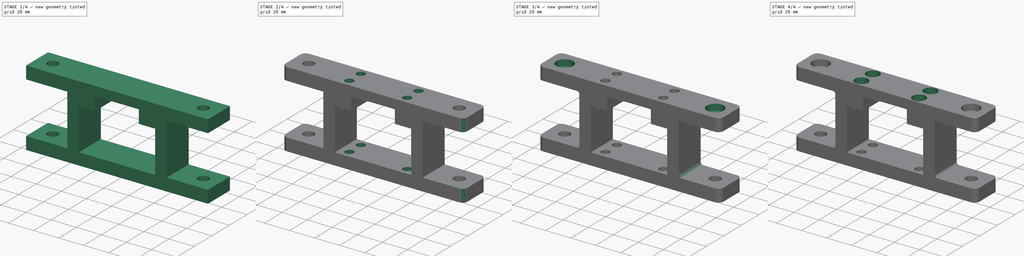
[diagram: build sequence overview — one tinted view per stage of 4, left to right]
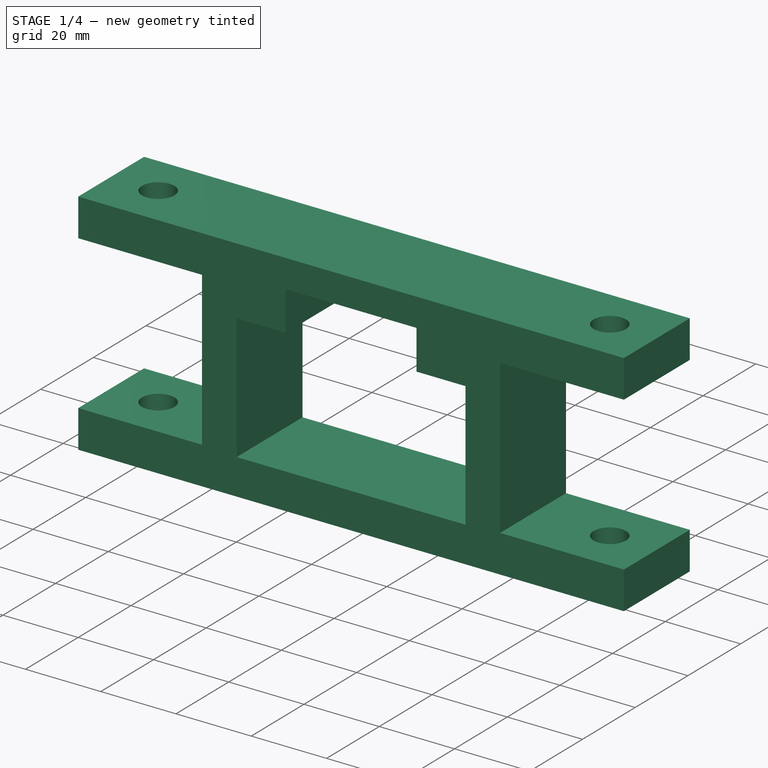
[diagram: stage 1 of 4 — iso view after this stage's code; geometry added in this stage tinted green]
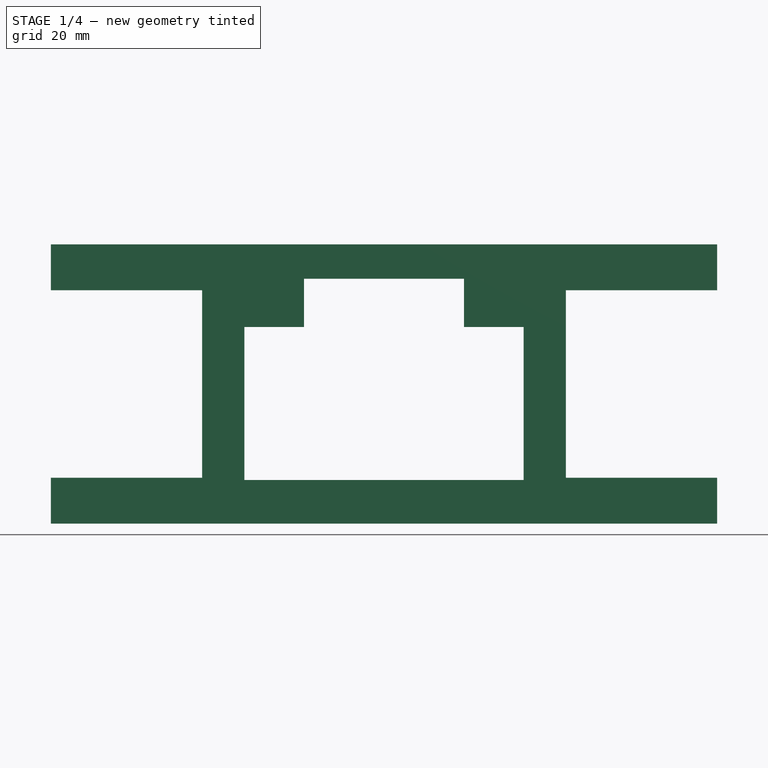
[diagram: stage 1 of 4 — front view after this stage's code; geometry added in this stage tinted green]
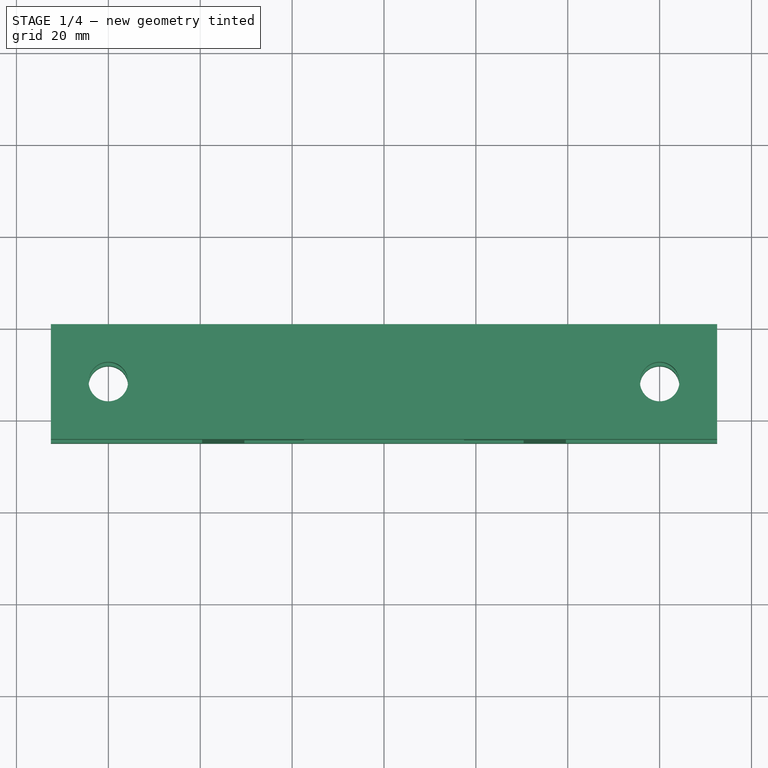
[diagram: stage 1 of 4 — top view after this stage's code; geometry added in this stage tinted green]
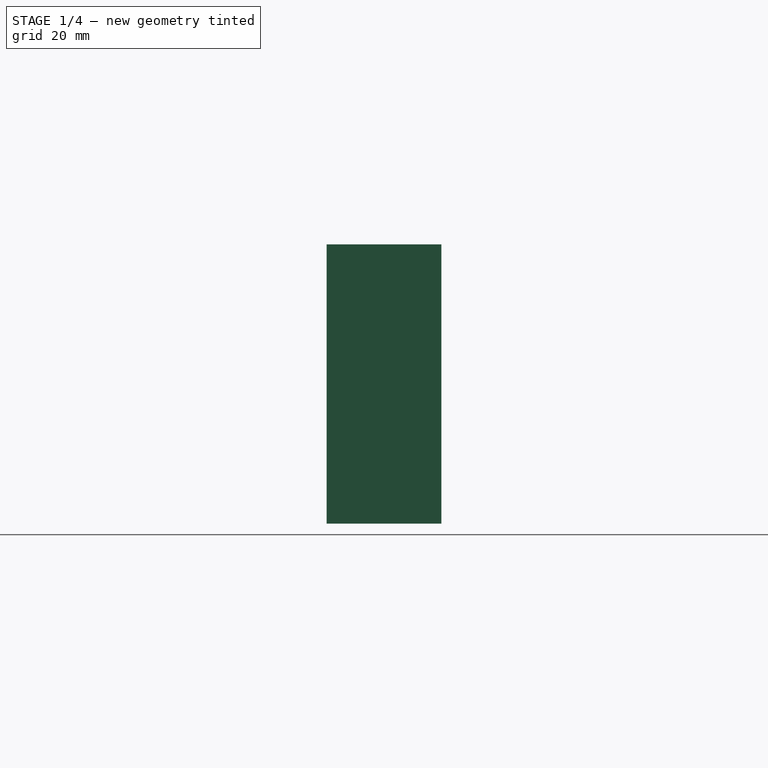
[diagram: stage 1 of 4 — right view after this stage's code; geometry added in this stage tinted green]
FCSTD DOCUMENT  (FreeCAD 1.0R39109 (Git))
Label: surge_BK12_support
License: All rights reserved
LicenseURL: https://en.wikipedia.org/wiki/All_rights_reserved
objects: Sketcher::SketchObject×7, PartDesign::Pocket×6, PartDesign::Fillet×2, PartDesign::Pad×1, PartDesign::Body×1
note: 42 computed .brp shape members not serialized (recipe doc carries the construction recipe); baked Part::Feature solids carry a one-line shape summary decoded from their .brp

FEATURE [Sketcher::SketchObject] Sketch
  ArcFitTolerance = 1e-06
  AttachmentSupport = -> [XZ_Plane]
  FullyConstrained = true
  MakeInternals = false
  MapMode = 5
  Placement = pos=(0,0,0) rot=(1,0,0;1.5708rad)
  sketch-geometry (40):
    g0: LineSegment [constr] StartX=-80 StartY=20 StartZ=0 EndX=-80 EndY=-20 EndZ=0
    g1: LineSegment [constr] StartX=-80 StartY=-20 StartZ=0 EndX=-40 EndY=-20 EndZ=0
    g2: LineSegment [constr] StartX=-40 StartY=-20 StartZ=0 EndX=-40 EndY=20 EndZ=0
    g3: LineSegment [constr] StartX=-40 StartY=20 StartZ=0 EndX=-80 EndY=20 EndZ=0
    g4: LineSegment [constr] StartX=40 StartY=20 StartZ=0 EndX=40 EndY=-20 EndZ=0
    g5: LineSegment [constr] StartX=40 StartY=-20 StartZ=0 EndX=80 EndY=-20 EndZ=0
    g6: LineSegment [constr] StartX=80 StartY=-20 StartZ=0 EndX=80 EndY=20 EndZ=0
    g7: LineSegment [constr] StartX=80 StartY=20 StartZ=0 EndX=40 EndY=20 EndZ=0
    g8: LineSegment [constr] StartX=-40 StartY=-20 StartZ=0 EndX=-7.1e-15 EndY=0 EndZ=0
    g9: LineSegment [constr] StartX=-3.6e-15 StartY=0 StartZ=0 EndX=40 EndY=-20 EndZ=0
    g10: LineSegment [constr] StartX=-30 StartY=-20.5 StartZ=0 EndX=30 EndY=-20.5 EndZ=0
    g11: LineSegment [constr] StartX=30 StartY=-20.5 StartZ=0 EndX=30 EndY=12 EndZ=0
    g12: LineSegment [constr] StartX=-30 StartY=-20.5 StartZ=0 EndX=-30 EndY=12 EndZ=0
    g13: LineSegment [constr] StartX=-30 StartY=12 StartZ=0 EndX=-17 EndY=12 EndZ=0
    g14: LineSegment [constr] StartX=-17 StartY=12 StartZ=0 EndX=-17 EndY=22.5 EndZ=0
    g15: LineSegment [constr] StartX=-17 StartY=22.5 StartZ=0 EndX=17 EndY=22.5 EndZ=0
    g16: LineSegment [constr] StartX=17 StartY=22.5 StartZ=0 EndX=17 EndY=12 EndZ=0
    g17: LineSegment [constr] StartX=17 StartY=12 StartZ=0 EndX=30 EndY=12 EndZ=0
    g18: LineSegment [constr] StartX=-30 StartY=-20.5 StartZ=0 EndX=-3.6e-15 EndY=0 EndZ=0
    g19: LineSegment [constr] StartX=-3.6e-15 StartY=0 StartZ=0 EndX=30 EndY=-20.5 EndZ=0
    g20: LineSegment StartX=-72.5 StartY=-30.4 StartZ=0 EndX=72.5 EndY=-30.4 EndZ=0
    g21: LineSegment StartX=72.5 StartY=30.4 StartZ=0 EndX=-72.5 EndY=30.4 EndZ=0
    g22: LineSegment StartX=-30.4 StartY=-20.9 StartZ=0 EndX=-30.4 EndY=12.4 EndZ=0
    g23: LineSegment StartX=-30.4 StartY=12.4 StartZ=0 EndX=-17.4 EndY=12.4 EndZ=0
    g24: LineSegment StartX=-17.4 StartY=12.4 StartZ=0 EndX=-17.4 EndY=22.9 EndZ=0
    g25: LineSegment StartX=-17.4 StartY=22.9 StartZ=0 EndX=17.4 EndY=22.9 EndZ=0
    g26: LineSegment StartX=17.4 StartY=22.9 StartZ=0 EndX=17.4 EndY=12.4 EndZ=0
    g27: LineSegment StartX=17.4 StartY=12.4 StartZ=0 EndX=30.4 EndY=12.4 EndZ=0
    g28: LineSegment StartX=30.4 StartY=12.4 StartZ=0 EndX=30.4 EndY=-20.9 EndZ=0
    g29: LineSegment StartX=30.4 StartY=-20.9 StartZ=0 EndX=-30.4 EndY=-20.9 EndZ=0
    g30: LineSegment StartX=72.5 StartY=-30.4 StartZ=0 EndX=72.5 EndY=-20.4 EndZ=0
    g31: LineSegment StartX=72.5 StartY=-20.4 StartZ=0 EndX=39.6 EndY=-20.4 EndZ=0
    g32: LineSegment StartX=39.6 StartY=-20.4 StartZ=0 EndX=39.6 EndY=20.4 EndZ=0
    g33: LineSegment StartX=39.6 StartY=20.4 StartZ=0 EndX=72.5 EndY=20.4 EndZ=0
    g34: LineSegment StartX=72.5 StartY=20.4 StartZ=0 EndX=72.5 EndY=30.4 EndZ=0
    g35: LineSegment StartX=-72.5 StartY=-30.4 StartZ=0 EndX=-72.5 EndY=-20.4 EndZ=0
    g36: LineSegment StartX=-72.5 StartY=-20.4 StartZ=0 EndX=-39.6 EndY=-20.4 EndZ=0
    g37: LineSegment StartX=-39.6 StartY=-20.4 StartZ=0 EndX=-39.6 EndY=20.4 EndZ=0
    g38: LineSegment StartX=-39.6 StartY=20.4 StartZ=0 EndX=-72.5 EndY=20.4 EndZ=0
    g39: LineSegment StartX=-72.5 StartY=20.4 StartZ=0 EndX=-72.5 EndY=30.4 EndZ=0
  constraints (116):
    c: Coincident(g0,g1)
    c: Coincident(g1,g2)
    c: Coincident(g2,g3)
    c: Coincident(g3,g0)
    c: Vertical(g0)
    c: Vertical(g2)
    c: Horizontal(g1)
    c: Horizontal(g3)
    c: Coincident(g4,g5)
    c: Coincident(g5,g6)
    c: Coincident(g6,g7)
    c: Coincident(g7,g4)
    c: Vertical(g4)
    c: Vertical(g6)
    c: Horizontal(g5)
    c: Horizontal(g7)
    c: Equal(g4,g7)
    c: Equal(g7,g2)
    c: Equal(g2,g3)
    c: DistanceX(g3,g3) = 40
    c: DistanceX(g2,g4) = 80
    c: DistanceY(g4,g2) = 0
    c: Coincident(g8,g1)
    c: Coincident(g8,g-1)
    c: Coincident(g9,g8)
    c: Coincident(g9,g4)
    c: Equal(g8,g9)
    c: Horizontal(g10)
    c: Coincident(g11,g10)
    c: Vertical(g11)
    c: Coincident(g12,g10)
    c: Vertical(g12)
    c: Coincident(g13,g12)
    c: Horizontal(g13)
    c: Coincident(g14,g13)
    c: Vertical(g14)
    c: Coincident(g15,g14)
    c: Horizontal(g15)
    c: Vertical(g16)
    c: Coincident(g17,g16)
    c: Coincident(g17,g11)
    c: DistanceX(g10,g10) = 60
    c: DistanceY(g12,g12) = 32.5
    c: Coincident(g16,g15)
    c: Horizontal(g17)
    c: Equal(g12,g11)
    c: Equal(g13,g17)
    c: DistanceX(g13,g13) = 13
    c: DistanceY(g14,g14) = 10.5
    c: DistanceY(g12,g2) = 8
    c: Coincident(g18,g10)
    c: Coincident(g18,g8)
    c: Coincident(g19,g8)
    c: Coincident(g19,g10)
    c: Equal(g19,g18)
    c: DistanceY(g8,g2) = 20
    c: Horizontal(g20)
    c: Horizontal(g21)
    c: Vertical(g22)
    c: Coincident(g22,g23)
    c: Horizontal(g23)
    c: Coincident(g23,g24)
    c: Vertical(g24)
    c: Coincident(g24,g25)
    c: Horizontal(g25)
    c: Coincident(g25,g26)
    c: Vertical(g26)
    c: Coincident(g26,g27)
    c: Horizontal(g27)
    c: Coincident(g27,g28)
    c: Vertical(g28)
    c: Coincident(g28,g29)
    c: Coincident(g29,g22)
    c: Horizontal(g29)
    c: Equal(g22,g28)
    c: Equal(g23,g27)
    c: DistanceY(g22,g10) = 0.4
    c: DistanceX(g22,g10) = 0.4
    c: DistanceY(g12,g22) = 0.4
    c: DistanceX(g23,g13) = 0.4
    c: DistanceY(g14,g24) = 0.4
    c: DistanceX(g10,g28) = 0.4
    c: Coincident(g20,g30)
    c: Vertical(g30)
    c: Coincident(g30,g31)
    c: Horizontal(g31)
    c: Coincident(g31,g32)
    c: Vertical(g32)
    c: Coincident(g32,g33)
    c: Horizontal(g33)
    c: Coincident(g33,g34)
    c: Coincident(g34,g21)
    c: Vertical(g34)
    c: Coincident(g20,g35)
    c: Vertical(g35)
    c: Coincident(g35,g36)
    c: Horizontal(g36)
    c: Coincident(g36,g37)
    c: Vertical(g37)
    c: Coincident(g37,g38)
    c: Horizontal(g38)
    c: Coincident(g38,g39)
    c: Coincident(g39,g21)
    c: Vertical(g39)
    c: DistanceY(g35,g0) = 0.4
    c: DistanceY(g35,g35) = 10
    c: DistanceX(g1,g36) = 0.4
    c: DistanceY(g2,g37) = 0.4
    c: Equal(g31,g33)
    c: Equal(g33,g38)
    c: Equal(g38,g36)
    c: Equal(g39,g35)
    c: Equal(g35,g30)
    c: Equal(g30,g34)
    c: DistanceX(g0,g35) = 7.5
    c: DistanceX(g31,g4) = 0.4
FEATURE [PartDesign::Pad] Pad
  Direction = (0,-1,2e-16)
  Length = 25
  Length2 = 10
  Placement = pos=(0,0,0) rot=(1,0,0;1.5708rad)
  Profile = -> Sketch
  ReferenceAxis = -> Sketch [N_Axis]
  Refine = true
  Suppressed = false
  Type = 0
FEATURE [Sketcher::SketchObject] Sketch001
  ArcFitTolerance = 1e-06
  AttachmentSupport = -> [Pad]
  FullyConstrained = true
  MakeInternals = false
  MapMode = 5
  Placement = pos=(0,1.34e-14,30.4) rot=(0,0,1;3.14159rad)
  sketch-geometry (14):
    g0: LineSegment [constr] StartX=-80 StartY=0 StartZ=0 EndX=-40 EndY=0 EndZ=0
    g1: LineSegment [constr] StartX=-40 StartY=0 StartZ=0 EndX=-40 EndY=25 EndZ=0
    g2: LineSegment [constr] StartX=-40 StartY=25 StartZ=0 EndX=-80 EndY=25 EndZ=0
    g3: LineSegment [constr] StartX=-80 StartY=25 StartZ=0 EndX=-80 EndY=0 EndZ=0
    g4: LineSegment [constr] StartX=80 StartY=0 StartZ=0 EndX=80 EndY=25 EndZ=0
    g5: LineSegment [constr] StartX=80 StartY=25 StartZ=0 EndX=40 EndY=25 EndZ=0
    g6: LineSegment [constr] StartX=40 StartY=25 StartZ=0 EndX=40 EndY=0 EndZ=0
    g7: LineSegment [constr] StartX=40 StartY=0 StartZ=0 EndX=80 EndY=0 EndZ=0
    g8: LineSegment [constr] StartX=-80 StartY=0 StartZ=0 EndX=-40 EndY=25 EndZ=0
    g9: LineSegment [constr] StartX=-40 StartY=0 StartZ=0 EndX=-80 EndY=25 EndZ=0
    g10: LineSegment [constr] StartX=40 StartY=0 StartZ=0 EndX=80 EndY=25 EndZ=0
    g11: LineSegment [constr] StartX=40 StartY=25 StartZ=0 EndX=80 EndY=0 EndZ=0
    g12: Circle CenterX=-60 CenterY=12.5 CenterZ=0 NormalX=0 NormalY=0 NormalZ=1 AngleXU=0 Radius=4.3
    g13: Circle CenterX=60 CenterY=12.5 CenterZ=0 NormalX=0 NormalY=0 NormalZ=1 AngleXU=0 Radius=4.3
  constraints (36):
    c: Coincident(g0,g1)
    c: Coincident(g1,g2)
    c: Coincident(g2,g3)
    c: Coincident(g3,g0)
    c: Horizontal(g0)
    c: Horizontal(g2)
    c: Vertical(g1)
    c: Vertical(g3)
    c: Distance(g1,g3) = 40
    c: Distance(g0,g2) = 25
    c: PointOnObject(g0,g-1)
    c: Coincident(g4,g5)
    c: Coincident(g5,g6)
    c: Coincident(g6,g7)
    c: Coincident(g7,g4)
    c: Vertical(g4)
    c: Vertical(g6)
    c: Horizontal(g5)
    c: Horizontal(g7)
    c: PointOnObject(g4,g-1)
    c: Equal(g0,g7)
    c: Equal(g3,g4)
    c: DistanceX(g0,g-1) = 80
    c: DistanceX(g-1,g4) = 80
    c: Coincident(g8,g0)
    c: Coincident(g8,g1)
    c: Coincident(g9,g0)
    c: Coincident(g9,g2)
    c: Coincident(g10,g6)
    c: Coincident(g10,g4)
    c: Coincident(g11,g5)
    c: Coincident(g11,g4)
    c: Symmetric(g9,g9,g12)
    c: Diameter(g12) = 8.6
    c: Symmetric(g10,g10,g13)
    c: Equal(g13,g12)
FEATURE [PartDesign::Pocket] Pocket
  BaseFeature = -> Pad
  Direction = (0,0,-1)
  Length = 5
  Length2 = 5
  Placement = pos=(0,0,0) rot=(1,0,0;1.5708rad)
  Profile = -> Sketch001
  ReferenceAxis = -> Sketch001 [N_Axis]
  Refine = true
  Suppressed = false
  Type = 1
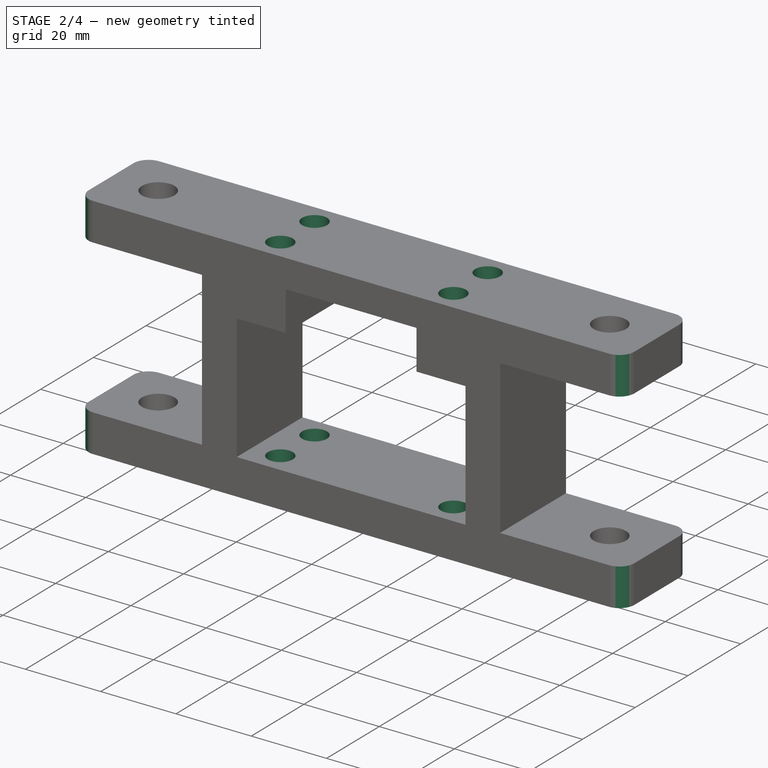
[diagram: stage 2 of 4 — iso view after this stage's code; geometry added in this stage tinted green]
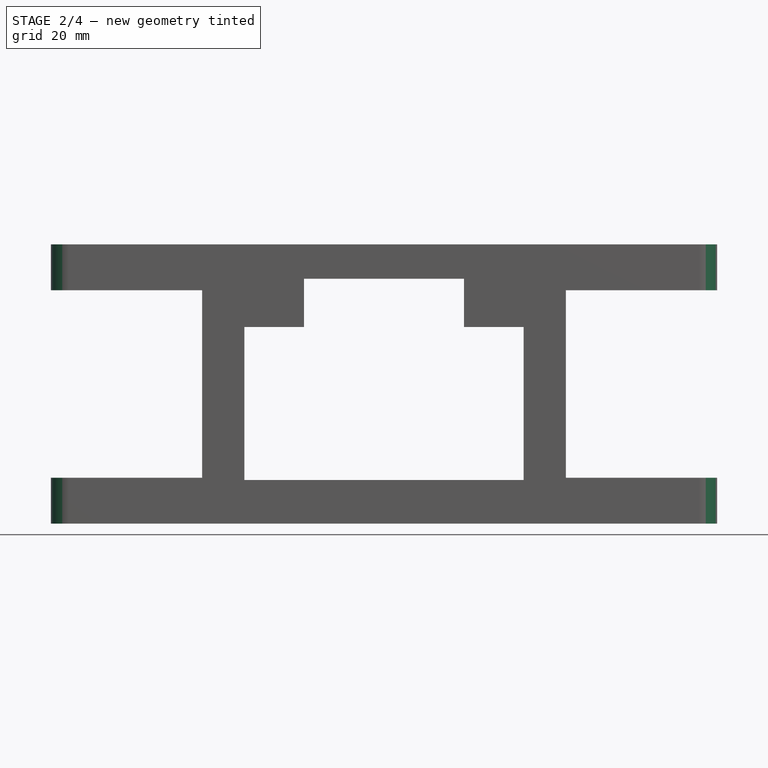
[diagram: stage 2 of 4 — front view after this stage's code; geometry added in this stage tinted green]
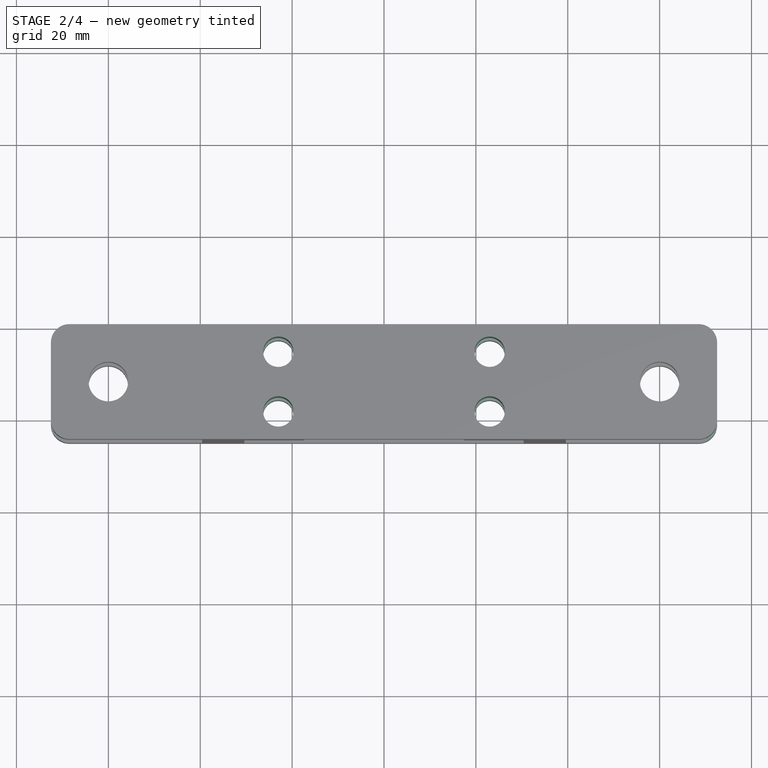
[diagram: stage 2 of 4 — top view after this stage's code; geometry added in this stage tinted green]
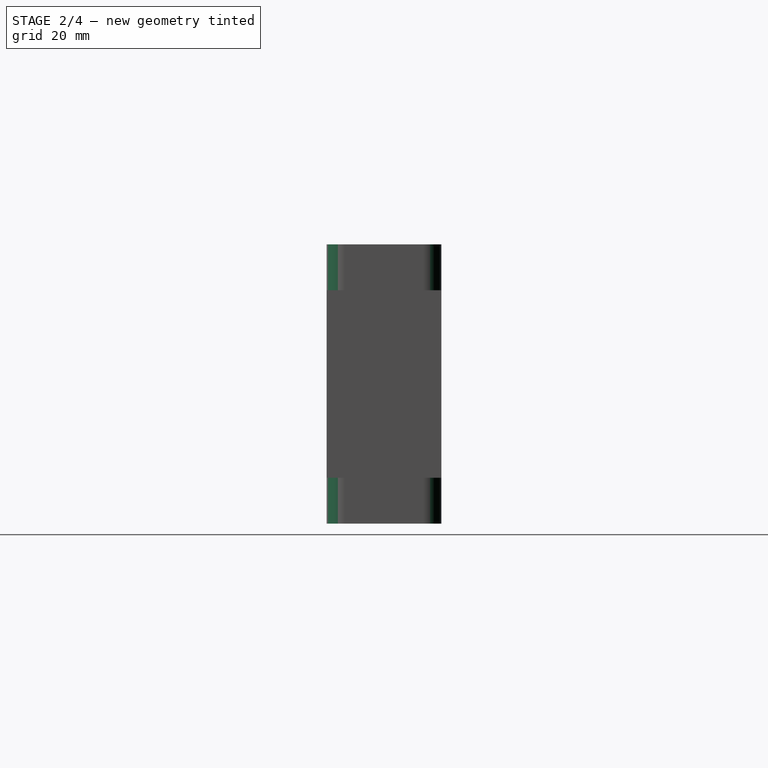
[diagram: stage 2 of 4 — right view after this stage's code; geometry added in this stage tinted green]
FEATURE [Sketcher::SketchObject] Sketch002
  ArcFitTolerance = 1e-06
  AttachmentSupport = -> [Pocket]
  FullyConstrained = true
  MakeInternals = false
  MapMode = 5
  Placement = pos=(0,1.34e-14,30.4) rot=(0,0,1;3.14159rad)
  sketch-geometry (7):
    g0: Circle CenterX=-23 CenterY=6 CenterZ=0 NormalX=0 NormalY=0 NormalZ=1 AngleXU=0 Radius=3.3
    g1: Circle CenterX=-23 CenterY=19 CenterZ=0 NormalX=0 NormalY=0 NormalZ=1 AngleXU=0 Radius=3.3
    g2: Circle CenterX=23 CenterY=19 CenterZ=0 NormalX=0 NormalY=0 NormalZ=1 AngleXU=0 Radius=3.3
    g3: Circle CenterX=23 CenterY=6 CenterZ=0 NormalX=0 NormalY=0 NormalZ=1 AngleXU=0 Radius=3.3
    g4: LineSegment [constr] StartX=-23 StartY=19 StartZ=0 EndX=23 EndY=6 EndZ=0
    g5: LineSegment [constr] StartX=23 StartY=19 StartZ=0 EndX=-23 EndY=6 EndZ=0
    g6: LineSegment [constr] StartX=0 StartY=0 StartZ=0 EndX=0 EndY=12.5 EndZ=0
  constraints (18):
    c: Diameter(g1) = 6.6
    c: Equal(g1,g0)
    c: Equal(g0,g3)
    c: Equal(g3,g2)
    c: DistanceY(g0,g1) = 13
    c: DistanceX(g1,g0) = 0
    c: DistanceY(g1,g2) = 0
    c: DistanceX(g3,g2) = 0
    c: DistanceY(g3,g0) = 0
    c: DistanceX(g1,g2) = 46
    c: Coincident(g4,g1)
    c: Coincident(g4,g3)
    c: Coincident(g5,g2)
    c: Coincident(g5,g0)
    c: Coincident(g6,g-1)
    c: Symmetric(g4,g4,g6)
    c: Vertical(g6)
    c: DistanceY(g6,g6) = 12.5
FEATURE [PartDesign::Pocket] Pocket001
  BaseFeature = -> Pocket
  Direction = (0,0,-1)
  Length = 5
  Length2 = 5
  Placement = pos=(0,0,0) rot=(1,0,0;1.5708rad)
  Profile = -> Sketch002
  ReferenceAxis = -> Sketch002 [N_Axis]
  Refine = true
  Suppressed = false
  Type = 1
FEATURE [PartDesign::Fillet] Fillet
  Base = -> Pocket001 [Edge38,Edge13,Edge32,Edge36,Edge20,Edge12,Edge14,Edge18]
  BaseFeature = -> Pocket001
  Placement = pos=(0,0,0) rot=(1,0,0;1.5708rad)
  Radius = 4
  Refine = true
  SupportTransform = false
  Suppressed = false
  UseAllEdges = false
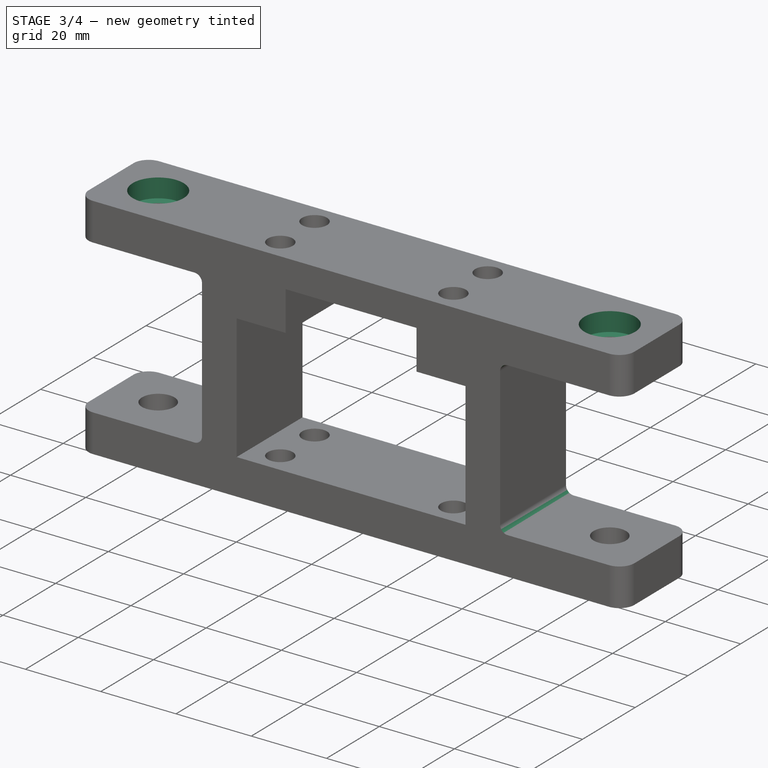
[diagram: stage 3 of 4 — iso view after this stage's code; geometry added in this stage tinted green]
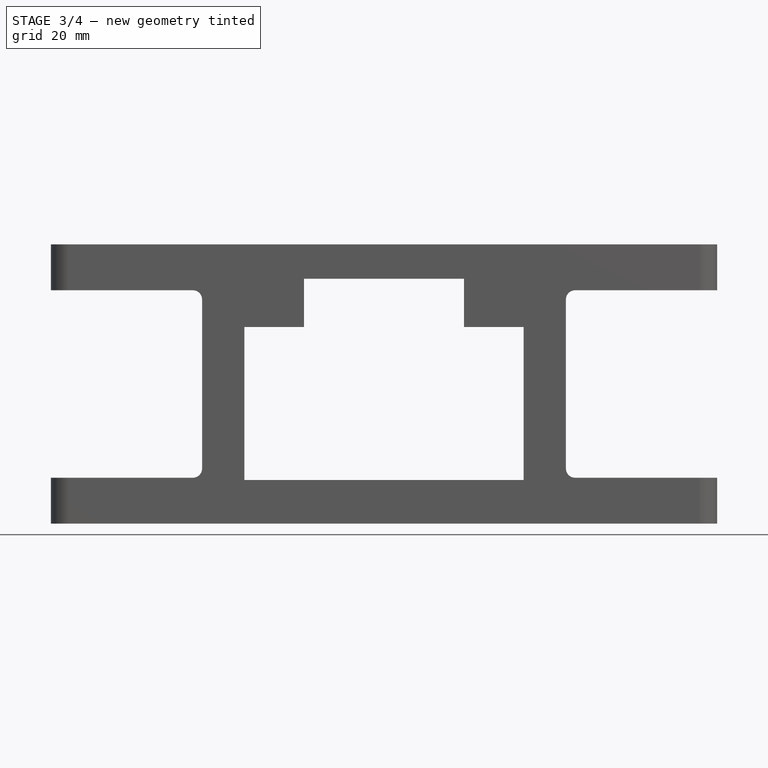
[diagram: stage 3 of 4 — front view after this stage's code; geometry added in this stage tinted green]
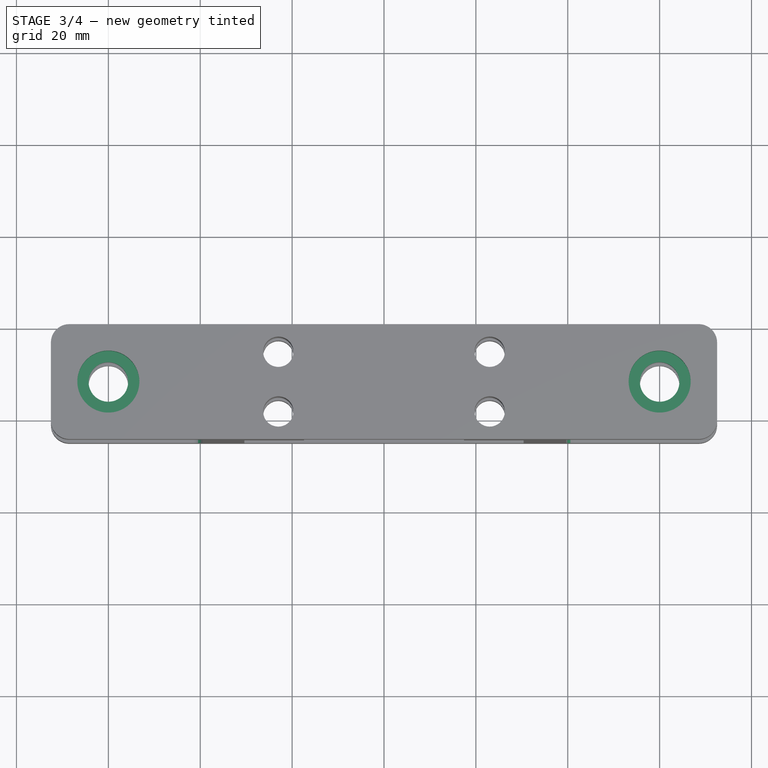
[diagram: stage 3 of 4 — top view after this stage's code; geometry added in this stage tinted green]
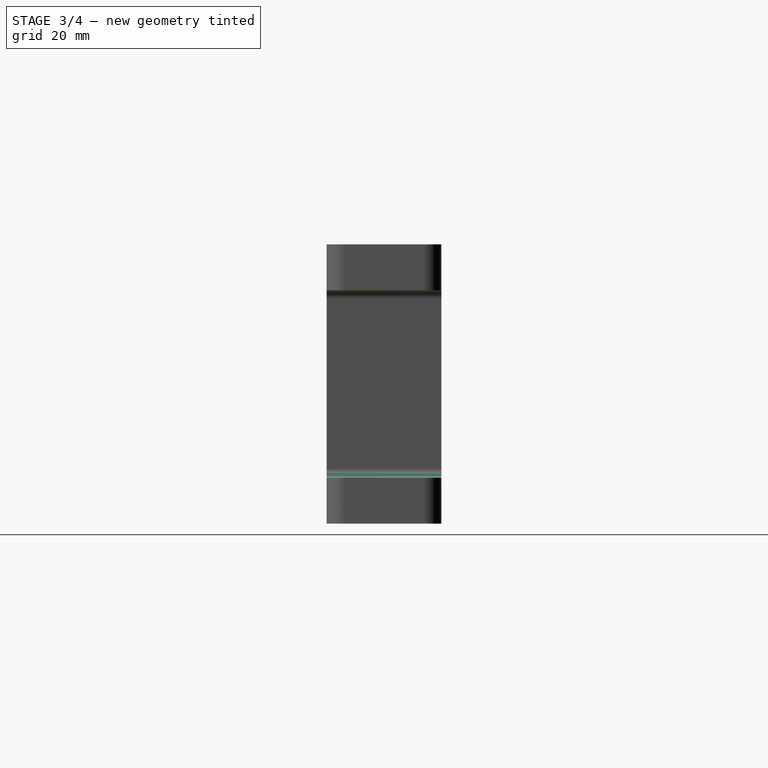
[diagram: stage 3 of 4 — right view after this stage's code; geometry added in this stage tinted green]
FEATURE [PartDesign::Fillet] Fillet001
  Base = -> Fillet [Edge75,Edge77,Edge78,Edge76]
  BaseFeature = -> Fillet
  Placement = pos=(0,0,0) rot=(1,0,0;1.5708rad)
  Radius = 2
  Refine = true
  SupportTransform = false
  Suppressed = false
  UseAllEdges = false
FEATURE [Sketcher::SketchObject] Sketch003
  ArcFitTolerance = 1e-06
  AttachmentSupport = -> [Fillet001]
  FullyConstrained = true
  MakeInternals = false
  MapMode = 5
  Placement = pos=(0,1.34e-14,30.4) rot=(0,0,1;3.14159rad)
  expr: Constraints[22] = Sketch001.Constraints[22]
  expr: Constraints[23] = Sketch001.Constraints[23]
  expr: Constraints[33] = Sketch001.Constraints[33]
  expr: Constraints[8] = Sketch001.Constraints[8]
  expr: Constraints[9] = Sketch001.Constraints[9]
  sketch-geometry (16):
    g0: LineSegment [constr] StartX=-80 StartY=0 StartZ=0 EndX=-40 EndY=0 EndZ=0
    g1: LineSegment [constr] StartX=-40 StartY=0 StartZ=0 EndX=-40 EndY=25 EndZ=0
    g2: LineSegment [constr] StartX=-40 StartY=25 StartZ=0 EndX=-80 EndY=25 EndZ=0
    g3: LineSegment [constr] StartX=-80 StartY=25 StartZ=0 EndX=-80 EndY=0 EndZ=0
    g4: LineSegment [constr] StartX=80 StartY=0 StartZ=0 EndX=80 EndY=25 EndZ=0
    g5: LineSegment [constr] StartX=80 StartY=25 StartZ=0 EndX=40 EndY=25 EndZ=0
    g6: LineSegment [constr] StartX=40 StartY=25 StartZ=0 EndX=40 EndY=0 EndZ=0
    g7: LineSegment [constr] StartX=40 StartY=0 StartZ=0 EndX=80 EndY=0 EndZ=0
    g8: LineSegment [constr] StartX=-80 StartY=0 StartZ=0 EndX=-40 EndY=25 EndZ=0
    g9: LineSegment [constr] StartX=-40 StartY=0 StartZ=0 EndX=-80 EndY=25 EndZ=0
    g10: LineSegment [constr] StartX=40 StartY=0 StartZ=0 EndX=80 EndY=25 EndZ=0
    g11: LineSegment [constr] StartX=40 StartY=25 StartZ=0 EndX=80 EndY=0 EndZ=0
    g12: Circle [constr] CenterX=-60 CenterY=12.5 CenterZ=0 NormalX=0 NormalY=0 NormalZ=1 AngleXU=0 Radius=4.3
    g13: Circle [constr] CenterX=60 CenterY=12.5 CenterZ=0 NormalX=0 NormalY=0 NormalZ=1 AngleXU=0 Radius=4.3
    g14: Circle CenterX=-60 CenterY=12.5 CenterZ=0 NormalX=0 NormalY=0 NormalZ=1 AngleXU=0 Radius=6.75
    g15: Circle CenterX=60 CenterY=12.5 CenterZ=0 NormalX=0 NormalY=0 NormalZ=1 AngleXU=0 Radius=6.75
  constraints (40):
    c: Coincident(g0,g1)
    c: Coincident(g1,g2)
    c: Coincident(g2,g3)
    c: Coincident(g3,g0)
    c: Horizontal(g0)
    c: Horizontal(g2)
    c: Vertical(g1)
    c: Vertical(g3)
    c: Distance(g1,g3) = 40
    c: Distance(g0,g2) = 25
    c: PointOnObject(g0,g-1)
    c: Coincident(g4,g5)
    c: Coincident(g5,g6)
    c: Coincident(g6,g7)
    c: Coincident(g7,g4)
    c: Vertical(g4)
    c: Vertical(g6)
    c: Horizontal(g5)
    c: Horizontal(g7)
    c: PointOnObject(g4,g-1)
    c: Equal(g0,g7)
    c: Equal(g3,g4)
    c: DistanceX(g0,g-1) = 80
    c: DistanceX(g-1,g4) = 80
    c: Coincident(g8,g0)
    c: Coincident(g8,g1)
    c: Coincident(g9,g0)
    c: Coincident(g9,g2)
    c: Coincident(g10,g6)
    c: Coincident(g10,g4)
    c: Coincident(g11,g5)
    c: Coincident(g11,g4)
    c: Symmetric(g9,g9,g12)
    c: Diameter(g12) = 8.6
    c: Symmetric(g10,g10,g13)
    c: Equal(g13,g12)
    c: Diameter(g14) = 13.5
    c: Coincident(g14,g12)
    c: Coincident(g15,g13)
    c: Equal(g15,g14)
FEATURE [PartDesign::Pocket] Pocket002
  BaseFeature = -> Fillet001
  Direction = (0,0,-1)
  Length = 5
  Length2 = 5
  Placement = pos=(0,0,0) rot=(1,0,0;1.5708rad)
  Profile = -> Sketch003
  ReferenceAxis = -> Sketch003 [N_Axis]
  Refine = true
  Suppressed = false
  Type = 0
FEATURE [Sketcher::SketchObject] Sketch004
  ArcFitTolerance = 1e-06
  AttachmentOffset = pos=(0,0,-60.8) rot=(0,0,1;0rad)
  AttachmentSupport = -> [Pocket002]
  FullyConstrained = true
  MakeInternals = false
  MapMode = 5
  Placement = pos=(0,1.34e-14,-30.4) rot=(0,0,1;3.14159rad)
  expr: Constraints[22] = Sketch003.Constraints[22]
  expr: Constraints[23] = Sketch003.Constraints[23]
  expr: Constraints[33] = Sketch003.Constraints[33]
  expr: Constraints[36] = Sketch003.Constraints[36]
  expr: Constraints[8] = Sketch003.Constraints[8]
  expr: Constraints[9] = Sketch003.Constraints[9]
  sketch-geometry (16):
    g0: LineSegment [constr] StartX=-80 StartY=0 StartZ=0 EndX=-40 EndY=0 EndZ=0
    g1: LineSegment [constr] StartX=-40 StartY=0 StartZ=0 EndX=-40 EndY=25 EndZ=0
    g2: LineSegment [constr] StartX=-40 StartY=25 StartZ=0 EndX=-80 EndY=25 EndZ=0
    g3: LineSegment [constr] StartX=-80 StartY=25 StartZ=0 EndX=-80 EndY=0 EndZ=0
    g4: LineSegment [constr] StartX=80 StartY=0 StartZ=0 EndX=80 EndY=25 EndZ=0
    g5: LineSegment [constr] StartX=80 StartY=25 StartZ=0 EndX=40 EndY=25 EndZ=0
    g6: LineSegment [constr] StartX=40 StartY=25 StartZ=0 EndX=40 EndY=0 EndZ=0
    g7: LineSegment [constr] StartX=40 StartY=0 StartZ=0 EndX=80 EndY=0 EndZ=0
    g8: LineSegment [constr] StartX=-80 StartY=0 StartZ=0 EndX=-40 EndY=25 EndZ=0
    g9: LineSegment [constr] StartX=-40 StartY=0 StartZ=0 EndX=-80 EndY=25 EndZ=0
    g10: LineSegment [constr] StartX=40 StartY=0 StartZ=0 EndX=80 EndY=25 EndZ=0
    g11: LineSegment [constr] StartX=40 StartY=25 StartZ=0 EndX=80 EndY=0 EndZ=0
    g12: Circle [constr] CenterX=-60 CenterY=12.5 CenterZ=0 NormalX=0 NormalY=0 NormalZ=1 AngleXU=0 Radius=4.3
    g13: Circle [constr] CenterX=60 CenterY=12.5 CenterZ=0 NormalX=0 NormalY=0 NormalZ=1 AngleXU=0 Radius=4.3
    g14: Circle CenterX=-60 CenterY=12.5 CenterZ=0 NormalX=0 NormalY=0 NormalZ=1 AngleXU=0 Radius=6.75
    g15: Circle CenterX=60 CenterY=12.5 CenterZ=0 NormalX=0 NormalY=0 NormalZ=1 AngleXU=0 Radius=6.75
  constraints (40):
    c: Coincident(g0,g1)
    c: Coincident(g1,g2)
    c: Coincident(g2,g3)
    c: Coincident(g3,g0)
    c: Horizontal(g0)
    c: Horizontal(g2)
    c: Vertical(g1)
    c: Vertical(g3)
    c: Distance(g1,g3) = 40
    c: Distance(g0,g2) = 25
    c: PointOnObject(g0,g-1)
    c: Coincident(g4,g5)
    c: Coincident(g5,g6)
    c: Coincident(g6,g7)
    c: Coincident(g7,g4)
    c: Vertical(g4)
    c: Vertical(g6)
    c: Horizontal(g5)
    c: Horizontal(g7)
    c: PointOnObject(g4,g-1)
    c: Equal(g0,g7)
    c: Equal(g3,g4)
    c: DistanceX(g0,g-1) = 80
    c: DistanceX(g-1,g4) = 80
    c: Coincident(g8,g0)
    c: Coincident(g8,g1)
    c: Coincident(g9,g0)
    c: Coincident(g9,g2)
    c: Coincident(g10,g6)
    c: Coincident(g10,g4)
    c: Coincident(g11,g5)
    c: Coincident(g11,g4)
    c: Symmetric(g9,g9,g12)
    c: Diameter(g12) = 8.6
    c: Symmetric(g10,g10,g13)
    c: Equal(g13,g12)
    c: Diameter(g14) = 13.5
    c: Coincident(g14,g12)
    c: Coincident(g15,g13)
    c: Equal(g15,g14)
FEATURE [PartDesign::Pocket] Pocket003
  BaseFeature = -> Pocket002
  Direction = (0,0,-1)
  Length = 5
  Length2 = 5
  Placement = pos=(0,0,0) rot=(1,0,0;1.5708rad)
  Profile = -> Sketch004
  ReferenceAxis = -> Sketch004 [N_Axis]
  Refine = true
  Reversed = true
  Suppressed = false
  Type = 0
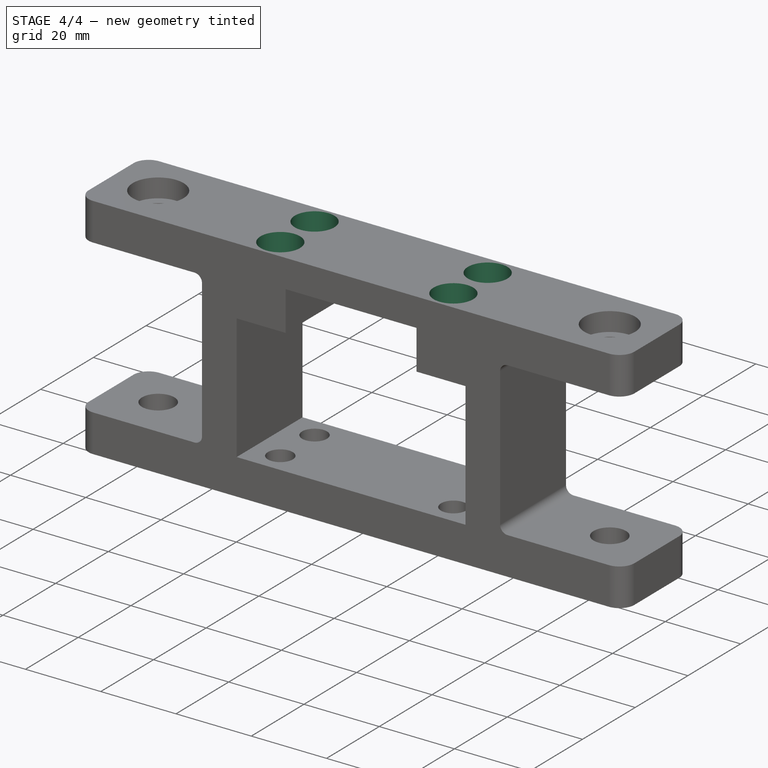
[diagram: stage 4 of 4 — iso view after this stage's code; geometry added in this stage tinted green]
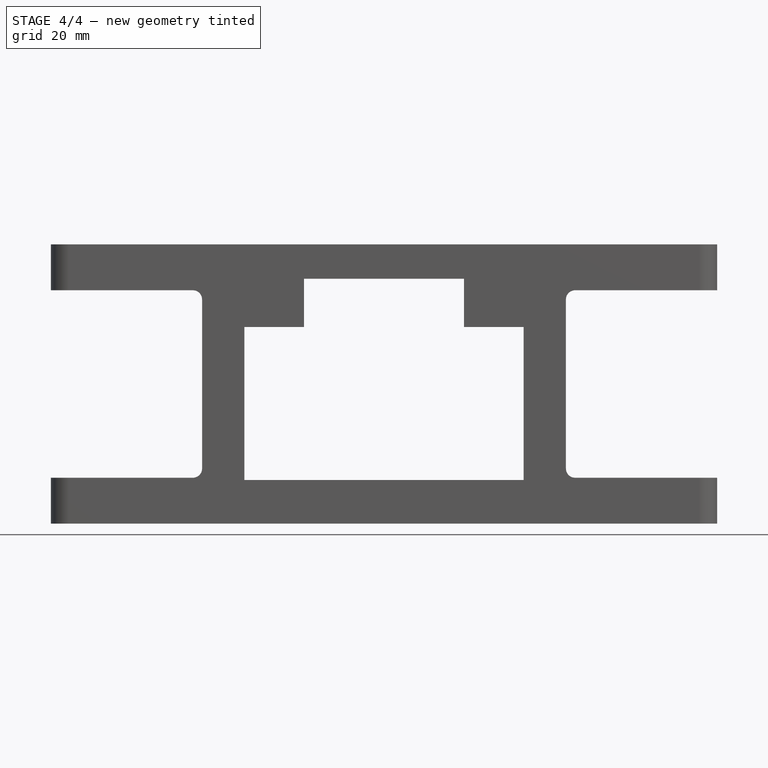
[diagram: stage 4 of 4 — front view after this stage's code; geometry added in this stage tinted green]
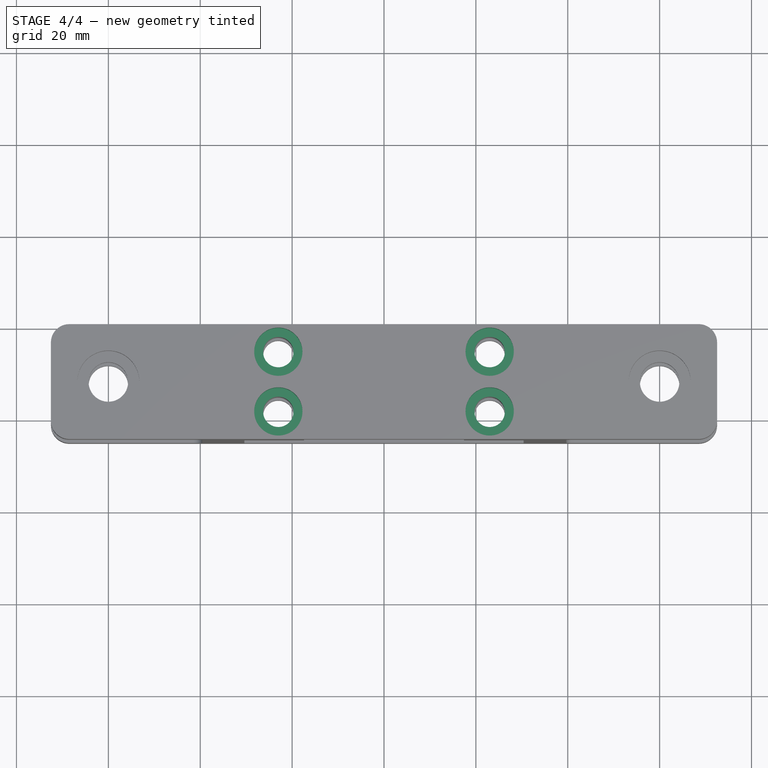
[diagram: stage 4 of 4 — top view after this stage's code; geometry added in this stage tinted green]
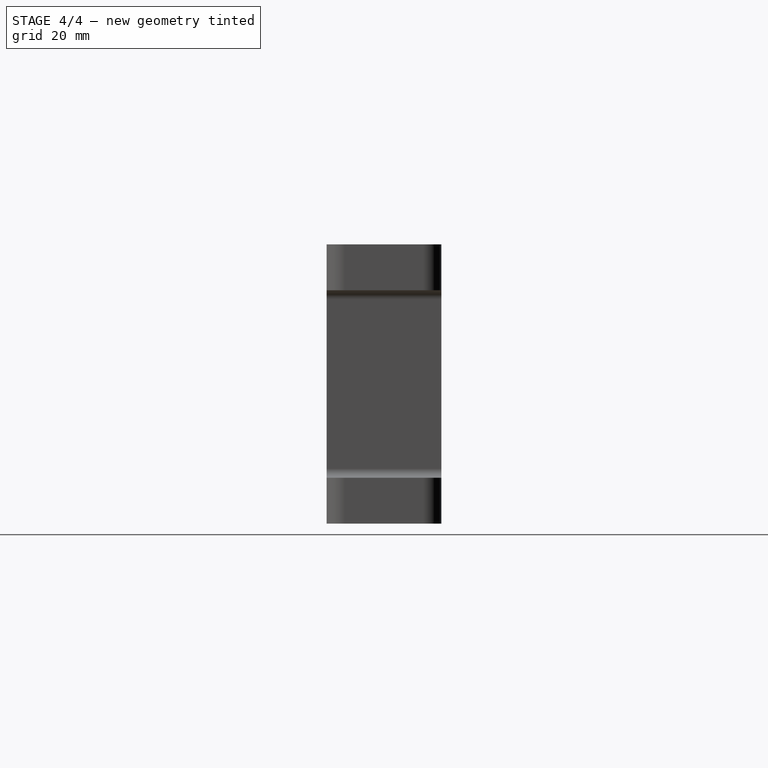
[diagram: stage 4 of 4 — right view after this stage's code; geometry added in this stage tinted green]
FEATURE [Sketcher::SketchObject] Sketch005
  ArcFitTolerance = 1e-06
  AttachmentSupport = -> [Pocket003]
  FullyConstrained = true
  MakeInternals = false
  MapMode = 5
  Placement = pos=(0,1.34e-14,30.4) rot=(0,0,1;3.14159rad)
  expr: Constraints[0] = Sketch002.Constraints[0]
  expr: Constraints[17] = Sketch002.Constraints[17]
  expr: Constraints[4] = Sketch002.Constraints[4]
  expr: Constraints[5] = Sketch002.Constraints[5]
  expr: Constraints[6] = Sketch002.Constraints[6]
  expr: Constraints[7] = Sketch002.Constraints[7]
  expr: Constraints[8] = Sketch002.Constraints[8]
  expr: Constraints[9] = Sketch002.Constraints[9]
  sketch-geometry (11):
    g0: Circle [constr] CenterX=-23 CenterY=6 CenterZ=0 NormalX=0 NormalY=0 NormalZ=1 AngleXU=0 Radius=3.3
    g1: Circle [constr] CenterX=-23 CenterY=19 CenterZ=0 NormalX=0 NormalY=0 NormalZ=1 AngleXU=0 Radius=3.3
    g2: Circle [constr] CenterX=23 CenterY=19 CenterZ=0 NormalX=0 NormalY=0 NormalZ=1 AngleXU=0 Radius=3.3
    g3: Circle [constr] CenterX=23 CenterY=6 CenterZ=0 NormalX=0 NormalY=0 NormalZ=1 AngleXU=0 Radius=3.3
    g4: LineSegment [constr] StartX=-23 StartY=19 StartZ=0 EndX=23 EndY=6 EndZ=0
    g5: LineSegment [constr] StartX=23 StartY=19 StartZ=0 EndX=-23 EndY=6 EndZ=0
    g6: LineSegment [constr] StartX=0 StartY=0 StartZ=0 EndX=0 EndY=12.5 EndZ=0
    g7: Circle CenterX=-23 CenterY=19 CenterZ=0 NormalX=0 NormalY=0 NormalZ=1 AngleXU=0 Radius=5.25
    g8: Circle CenterX=-23 CenterY=6 CenterZ=0 NormalX=0 NormalY=0 NormalZ=1 AngleXU=0 Radius=5.25
    g9: Circle CenterX=23 CenterY=6 CenterZ=0 NormalX=0 NormalY=0 NormalZ=1 AngleXU=0 Radius=5.25
    g10: Circle CenterX=23 CenterY=19 CenterZ=0 NormalX=0 NormalY=0 NormalZ=1 AngleXU=0 Radius=5.25
  constraints (26):
    c: Diameter(g1) = 6.6
    c: Equal(g1,g0)
    c: Equal(g0,g3)
    c: Equal(g3,g2)
    c: DistanceY(g0,g1) = 13
    c: DistanceX(g1,g0) = 0
    c: DistanceY(g1,g2) = 0
    c: DistanceX(g3,g2) = 0
    c: DistanceY(g3,g0) = 0
    c: DistanceX(g1,g2) = 46
    c: Coincident(g4,g1)
    c: Coincident(g4,g3)
    c: Coincident(g5,g2)
    c: Coincident(g5,g0)
    c: Coincident(g6,g-1)
    c: Symmetric(g4,g4,g6)
    c: Vertical(g6)
    c: DistanceY(g6,g6) = 12.5
    c: Diameter(g7) = 10.5
    c: Coincident(g7,g1)
    c: Coincident(g8,g0)
    c: Coincident(g9,g3)
    c: Coincident(g10,g2)
    c: Equal(g7,g10)
    c: Equal(g10,g9)
    c: Equal(g9,g8)
FEATURE [PartDesign::Pocket] Pocket004
  BaseFeature = -> Pocket003
  Direction = (0,0,-1)
  Length = 5
  Length2 = 5
  Placement = pos=(0,0,0) rot=(1,0,0;1.5708rad)
  Profile = -> Sketch005
  ReferenceAxis = -> Sketch005 [N_Axis]
  Refine = true
  Suppressed = false
  Type = 0
FEATURE [Sketcher::SketchObject] Sketch006
  ArcFitTolerance = 1e-06
  AttachmentOffset = pos=(0,0,-60.8) rot=(0,0,1;0rad)
  AttachmentSupport = -> [Pocket004]
  FullyConstrained = true
  MakeInternals = false
  MapMode = 5
  Placement = pos=(0,1.34e-14,-30.4) rot=(0,0,1;3.14159rad)
  expr: Constraints[0] = Sketch002.Constraints[0]
  expr: Constraints[17] = Sketch002.Constraints[17]
  expr: Constraints[4] = Sketch002.Constraints[4]
  expr: Constraints[5] = Sketch002.Constraints[5]
  expr: Constraints[6] = Sketch002.Constraints[6]
  expr: Constraints[7] = Sketch002.Constraints[7]
  expr: Constraints[8] = Sketch002.Constraints[8]
  expr: Constraints[9] = Sketch002.Constraints[9]
  sketch-geometry (35):
    g0: Circle [constr] CenterX=-23 CenterY=6 CenterZ=0 NormalX=0 NormalY=0 NormalZ=1 AngleXU=0 Radius=3.3
    g1: Circle [constr] CenterX=-23 CenterY=19 CenterZ=0 NormalX=0 NormalY=0 NormalZ=1 AngleXU=0 Radius=3.3
    g2: Circle [constr] CenterX=23 CenterY=19 CenterZ=0 NormalX=0 NormalY=0 NormalZ=1 AngleXU=0 Radius=3.3
    g3: Circle [constr] CenterX=23 CenterY=6 CenterZ=0 NormalX=0 NormalY=0 NormalZ=1 AngleXU=0 Radius=3.3
    g4: LineSegment [constr] StartX=-23 StartY=19 StartZ=0 EndX=23 EndY=6 EndZ=0
    g5: LineSegment [constr] StartX=23 StartY=19 StartZ=0 EndX=-23 EndY=6 EndZ=0
    g6: LineSegment [constr] StartX=0 StartY=0 StartZ=0 EndX=0 EndY=12.5 EndZ=0
    g7: LineSegment StartX=-20.0266 StartY=13.85 StartZ=0 EndX=-17.0533 EndY=19 EndZ=0
    g8: LineSegment StartX=-17.0533 StartY=19 StartZ=0 EndX=-20.0266 EndY=24.15 EndZ=0
    g9: LineSegment StartX=-20.0266 StartY=24.15 StartZ=0 EndX=-25.9734 EndY=24.15 EndZ=0
    g10: LineSegment StartX=-25.9734 StartY=24.15 StartZ=0 EndX=-28.9467 EndY=19 EndZ=0
    g11: LineSegment StartX=-28.9467 StartY=19 StartZ=0 EndX=-25.9734 EndY=13.85 EndZ=0
    g12: LineSegment StartX=-25.9734 StartY=13.85 StartZ=0 EndX=-20.0266 EndY=13.85 EndZ=0
    g13: Circle [constr] CenterX=-23 CenterY=19 CenterZ=0 NormalX=0 NormalY=0 NormalZ=1 AngleXU=0 Radius=5.94671
    g14: LineSegment StartX=-20.0266 StartY=0.85 StartZ=0 EndX=-17.0533 EndY=6 EndZ=0
    g15: LineSegment StartX=-17.0533 StartY=6 StartZ=0 EndX=-20.0266 EndY=11.15 EndZ=0
    g16: LineSegment StartX=-20.0266 StartY=11.15 StartZ=0 EndX=-25.9734 EndY=11.15 EndZ=0
    g17: LineSegment StartX=-25.9734 StartY=11.15 StartZ=0 EndX=-28.9467 EndY=6 EndZ=0
    g18: LineSegment StartX=-28.9467 StartY=6 StartZ=0 EndX=-25.9734 EndY=0.85 EndZ=0
    g19: LineSegment StartX=-25.9734 StartY=0.85 StartZ=0 EndX=-20.0266 EndY=0.85 EndZ=0
    g20: Circle [constr] CenterX=-23 CenterY=6 CenterZ=0 NormalX=0 NormalY=0 NormalZ=1 AngleXU=0 Radius=5.94671
    g21: LineSegment StartX=25.9734 StartY=13.85 StartZ=0 EndX=28.9467 EndY=19 EndZ=0
    g22: LineSegment StartX=28.9467 StartY=19 StartZ=0 EndX=25.9734 EndY=24.15 EndZ=0
    g23: LineSegment StartX=25.9734 StartY=24.15 StartZ=0 EndX=20.0266 EndY=24.15 EndZ=0
    g24: LineSegment StartX=20.0266 StartY=24.15 StartZ=0 EndX=17.0533 EndY=19 EndZ=0
    g25: LineSegment StartX=17.0533 StartY=19 StartZ=0 EndX=20.0266 EndY=13.85 EndZ=0
    g26: LineSegment StartX=20.0266 StartY=13.85 StartZ=0 EndX=25.9734 EndY=13.85 EndZ=0
    g27: Circle [constr] CenterX=23 CenterY=19 CenterZ=0 NormalX=0 NormalY=0 NormalZ=1 AngleXU=0 Radius=5.94671
    g28: LineSegment StartX=25.9734 StartY=0.85 StartZ=0 EndX=28.9467 EndY=6 EndZ=0
    g29: LineSegment StartX=28.9467 StartY=6 StartZ=0 EndX=25.9734 EndY=11.15 EndZ=0
    g30: LineSegment StartX=25.9734 StartY=11.15 StartZ=0 EndX=20.0266 EndY=11.15 EndZ=0
    g31: LineSegment StartX=20.0266 StartY=11.15 StartZ=0 EndX=17.0533 EndY=6 EndZ=0
    g32: LineSegment StartX=17.0533 StartY=6 StartZ=0 EndX=20.0266 EndY=0.85 EndZ=0
    g33: LineSegment StartX=20.0266 StartY=0.85 StartZ=0 EndX=25.9734 EndY=0.85 EndZ=0
    g34: Circle [constr] CenterX=23 CenterY=6 CenterZ=0 NormalX=0 NormalY=0 NormalZ=1 AngleXU=0 Radius=5.94671
  constraints (82):
    c: Diameter(g1) = 6.6
    c: Equal(g1,g0)
    c: Equal(g0,g3)
    c: Equal(g3,g2)
    c: DistanceY(g0,g1) = 13
    c: DistanceX(g1,g0) = 0
    c: DistanceY(g1,g2) = 0
    c: DistanceX(g3,g2) = 0
    c: DistanceY(g3,g0) = 0
    c: DistanceX(g1,g2) = 46
    c: Coincident(g4,g1)
    c: Coincident(g4,g3)
    c: Coincident(g5,g2)
    c: Coincident(g5,g0)
    c: Coincident(g6,g-1)
    c: Symmetric(g4,g4,g6)
    c: Vertical(g6)
    c: DistanceY(g6,g6) = 12.5
    c: Coincident(g7,g8)
    c: Coincident(g8,g9)
    c: Coincident(g9,g10)
    c: Coincident(g10,g11)
    c: Coincident(g11,g12)
    c: Coincident(g12,g7)
    c: Equal(g7, g8-g12) x5
    c: PointOnObject(g7,g13)
    c: PointOnObject(g8,g13)
    c: PointOnObject(g9,g13)
    c: PointOnObject(g10,g13)
    c: PointOnObject(g11,g13)
    c: PointOnObject(g12,g13)
    c: Coincident(g13,g1)
    c: Coincident(g14,g15)
    c: Coincident(g15,g16)
    c: Coincident(g16,g17)
    c: Coincident(g17,g18)
    c: Coincident(g18,g19)
    c: Coincident(g19,g14)
    c: Equal(g14, g15-g19) x5
    c: PointOnObject(g14,g20)
    c: PointOnObject(g15,g20)
    c: PointOnObject(g16,g20)
    c: PointOnObject(g17,g20)
    c: PointOnObject(g18,g20)
    c: PointOnObject(g19,g20)
    c: Coincident(g20,g0)
    c: Coincident(g21,g22)
    c: Coincident(g22,g23)
    c: Coincident(g23,g24)
    c: Coincident(g24,g25)
    c: Coincident(g25,g26)
    c: Coincident(g26,g21)
    c: Equal(g21, g22-g26) x5
    c: PointOnObject(g21,g27)
    c: PointOnObject(g22,g27)
    c: PointOnObject(g23,g27)
    c: PointOnObject(g24,g27)
    c: PointOnObject(g25,g27)
    c: PointOnObject(g26,g27)
    c: Coincident(g27,g2)
    c: Coincident(g28,g29)
    c: Coincident(g29,g30)
    c: Coincident(g30,g31)
    c: Coincident(g31,g32)
    c: Coincident(g32,g33)
    c: Coincident(g33,g28)
    c: Equal(g28, g29-g33) x5
    c: PointOnObject(g28,g34)
    c: PointOnObject(g29,g34)
    c: PointOnObject(g30,g34)
    c: PointOnObject(g31,g34)
    c: PointOnObject(g32,g34)
    c: PointOnObject(g33,g34)
    c: Coincident(g34,g3)
    c: Horizontal(g9)
    c: Horizontal(g16)
    c: Horizontal(g23)
    c: Horizontal(g30)
    c: Distance(g9,g7) = 10.3
    c: Equal(g13,g20)
    c: Equal(g20,g34)
    c: Equal(g34,g27)
FEATURE [PartDesign::Pocket] Pocket005
  BaseFeature = -> Pocket004
  Direction = (0,0,-1)
  Length = 4
  Length2 = 5
  Placement = pos=(0,0,0) rot=(1,0,0;1.5708rad)
  Profile = -> Sketch006
  ReferenceAxis = -> Sketch006 [N_Axis]
  Refine = true
  Reversed = true
  Suppressed = false
  Type = 0
FEATURE [PartDesign::Body] Body  label="surge_BK12_support"
  AllowCompound = false
  Group = -> [Sketch,Pad,Sketch001,Pocket,Sketch002,Pocket001,Fillet,Fillet001,Sketch003,Pocket002,Sketch004,Pocket003,Sketch005,Pocket004,Sketch006,Pocket005]
  Origin = -> Origin
  Tip = -> Pocket005
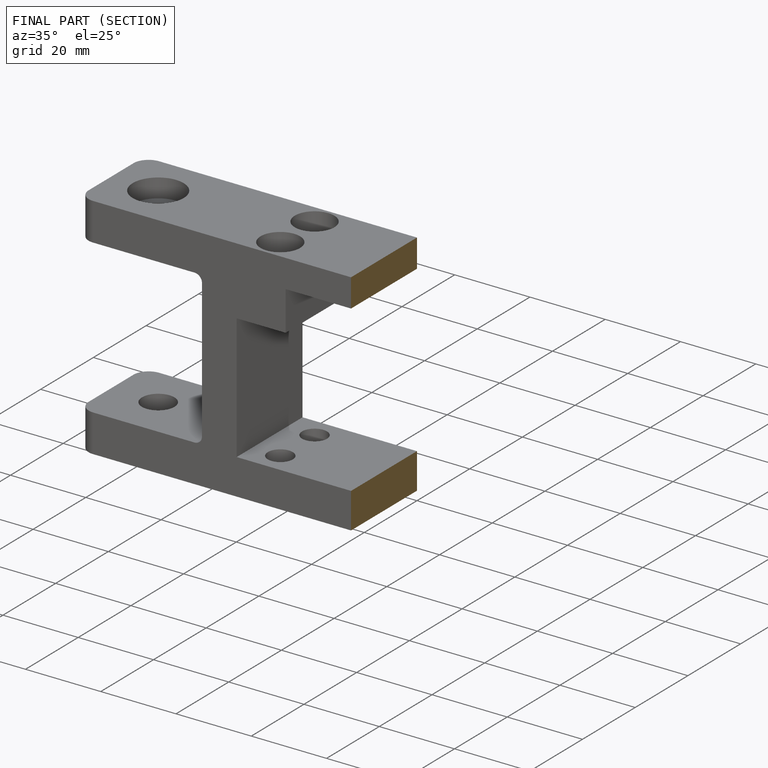
[diagram: finished part — half-section view (interior)]
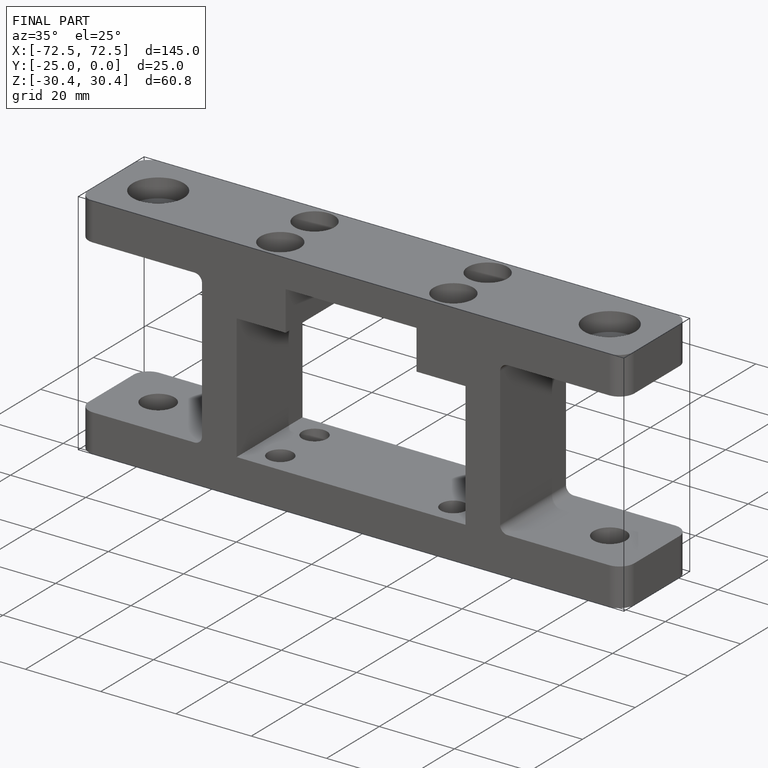
[diagram: finished part — iso view with bounding-box wireframe]
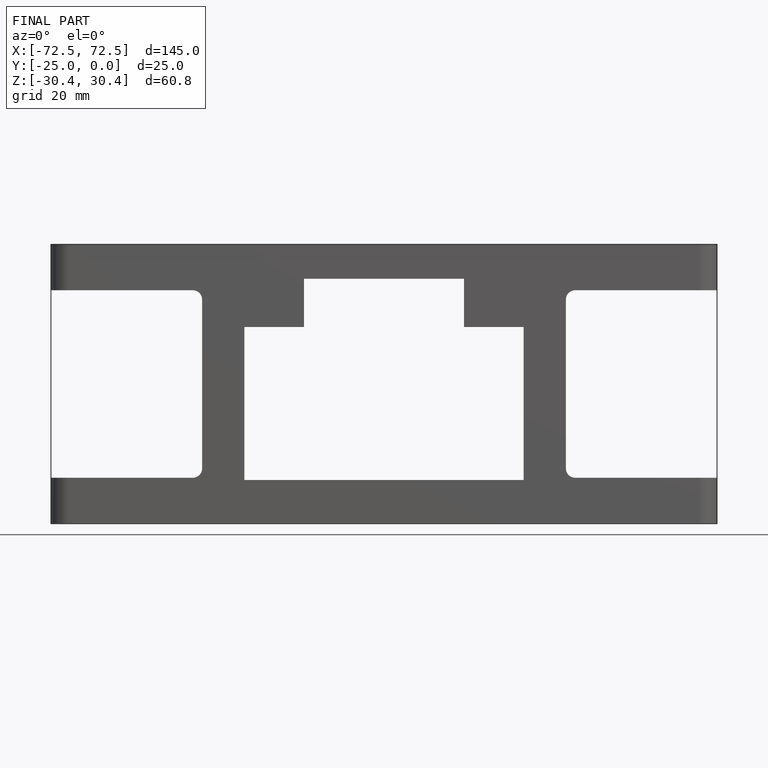
[diagram: finished part — front view with bounding-box wireframe]
